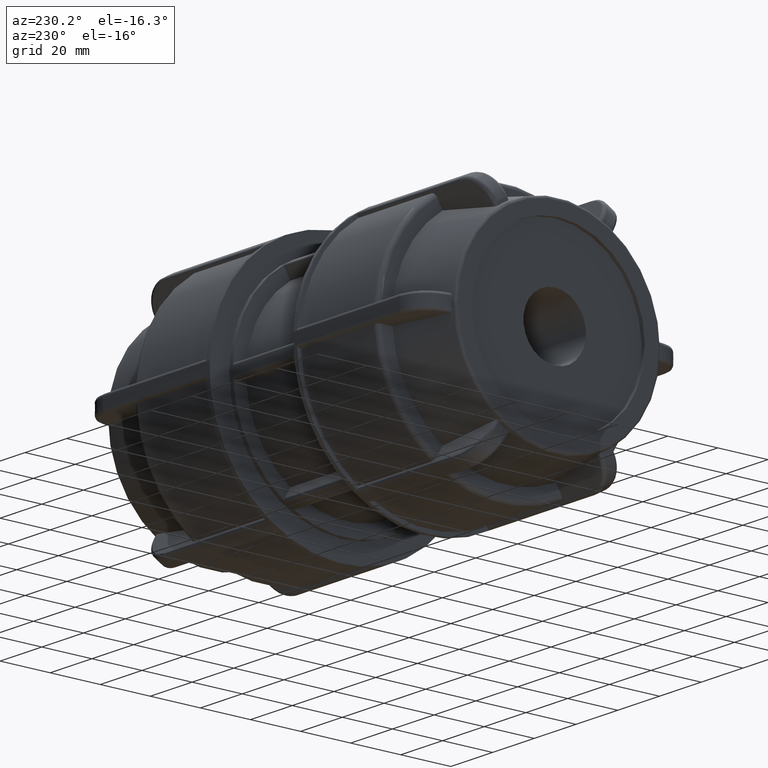
[diagram: clean part render]
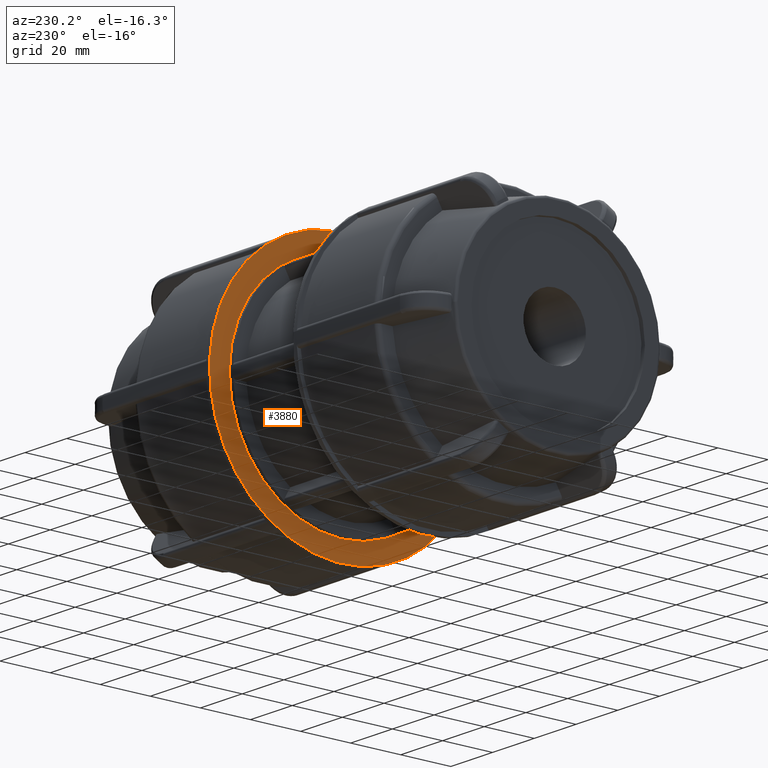
[diagram: same view with one face highlighted and labeled with its STEP entity id]
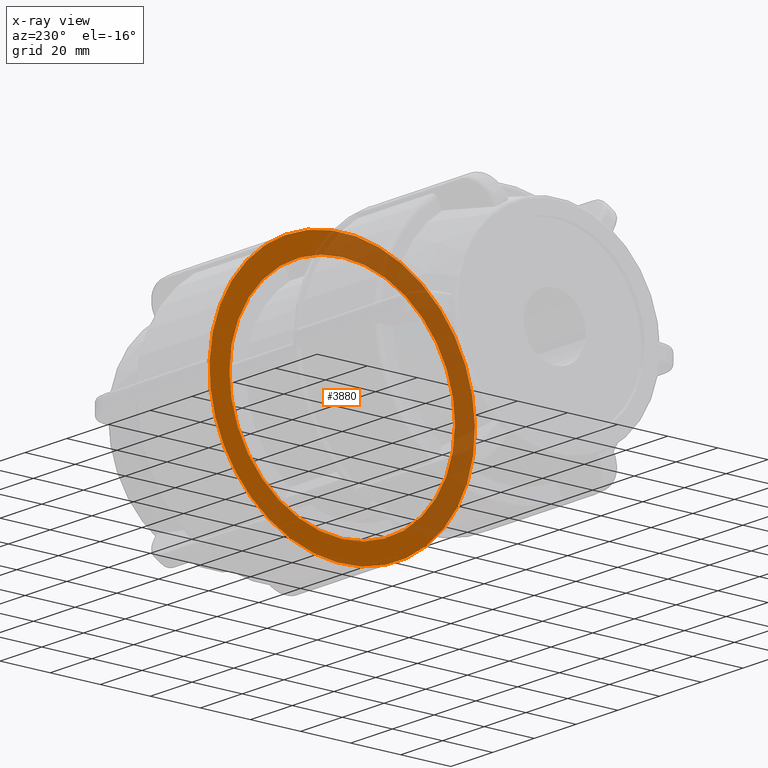
[diagram: x-ray of the same camera — body ghosted, the highlighted face saturated]
A machine part, auxiliary view. The second image highlights one B-rep face of the part: STEP entity #3880.
The next image is the same camera in x-ray: the body ghosted, the highlighted face saturated — about 41% of this face is hidden behind the body in this view.
In plain terms, the highlighted planar face has unit normal (-1, -0, 0).
Its self-contained STEP definition (entity closure, byte-faithful):
#208=FACE_BOUND('',#746,.T.);
#287=PLANE('',#4289);
#494=FACE_OUTER_BOUND('',#745,.T.);
#745=EDGE_LOOP('',(#3394));
#746=EDGE_LOOP('',(#3395));
#1251=CIRCLE('',#3931,45.05);
#1398=CIRCLE('',#4204,53.);
#1491=VERTEX_POINT('',#5499);
#1721=VERTEX_POINT('',#7009);
#1870=EDGE_CURVE('',#1491,#1491,#1251,.T.);
#2223=EDGE_CURVE('',#1721,#1721,#1398,.T.);
#3394=ORIENTED_EDGE('',*,*,#2223,.F.);
#3395=ORIENTED_EDGE('',*,*,#1870,.T.);
#3880=ADVANCED_FACE('',(#494,#208),#287,.T.);
#3931=AXIS2_PLACEMENT_3D('',#5500,#4388,#4389);
#4204=AXIS2_PLACEMENT_3D('',#7010,#5076,#5077);
#4289=AXIS2_PLACEMENT_3D('',#7895,#5313,#5314);
#4388=DIRECTION('center_axis',(1.,3.06161699786838E-16,0.));
#4389=DIRECTION('ref_axis',(0.,0.,-1.));
#5076=DIRECTION('center_axis',(1.,3.06161699786838E-16,0.));
#5077=DIRECTION('ref_axis',(0.,0.,-1.));
#5313=DIRECTION('center_axis',(-1.,-3.06161699786838E-16,0.));
#5314=DIRECTION('ref_axis',(0.,0.,1.));
#5499=CARTESIAN_POINT('',(20.04,25.1978487353781,-37.3439542511101));
#5500=CARTESIAN_POINT('Origin',(20.04,6.13548046372824E-15,0.));
#7009=CARTESIAN_POINT('',(20.04,29.1811343706938,-44.2432073525362));
#7010=CARTESIAN_POINT('Origin',(20.04,6.13548046372824E-15,0.));
#7895=CARTESIAN_POINT('Origin',(20.04,53.,0.));